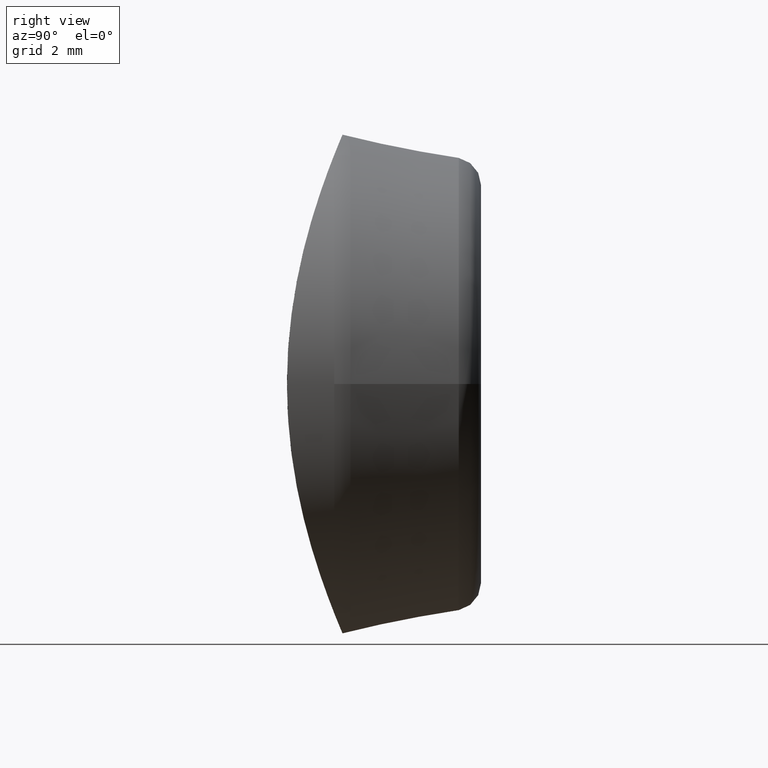
[diagram: clean part render]
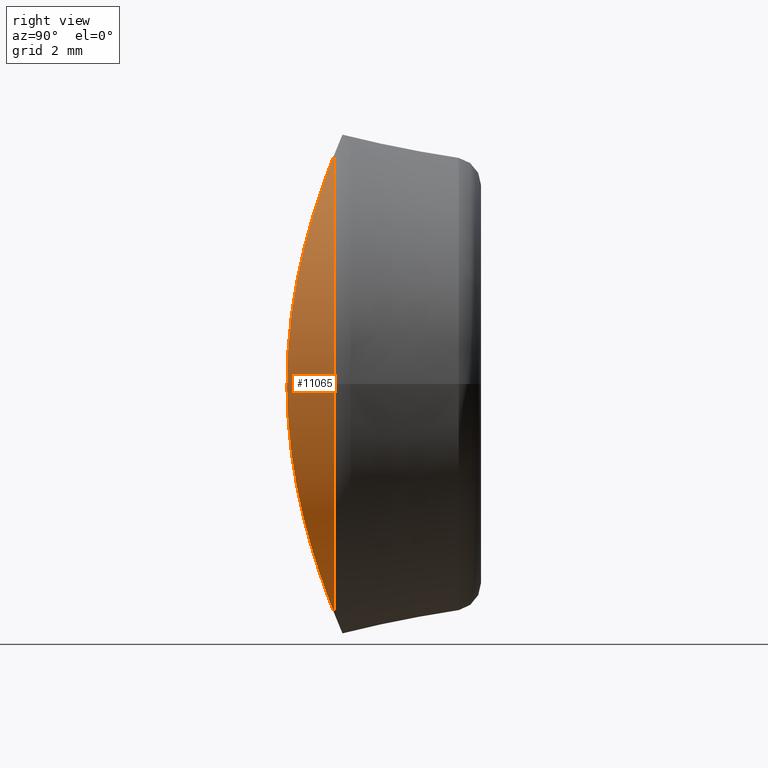
[diagram: same view with one face highlighted and labeled with its STEP entity id]
A machine part, right view. The second image highlights one B-rep face of the part: STEP entity #11065.
In plain terms, the highlighted cylindrical surface (partial cylindrical patch) has radius 9 mm, axis along (0, 1, 0).
Its self-contained STEP definition (entity closure, byte-faithful):
#3 = CARTESIAN_POINT ( 'NONE',  ( 8.325286420081219774, -1.702034945779434150, 3.446954527647875022 ) ) ;
#43 = CARTESIAN_POINT ( 'NONE',  ( 7.254618379325947330, -1.278246409192320687, -5.343986036388352012 ) ) ;
#77 = CARTESIAN_POINT ( 'NONE',  ( 6.408348769267516509, -0.9894555068876267345, 6.334097105854316290 ) ) ;
#119 = CARTESIAN_POINT ( 'NONE',  ( 8.737649480167293703, -1.883869969110991471, -2.201068361710543542 ) ) ;
#170 = CARTESIAN_POINT ( 'NONE',  ( 3.738979152164578323, -0.3313106756515576956, -8.189536316924305837 ) ) ;
#303 = EDGE_CURVE ( 'NONE', #12323, #11555, #5828, .T. ) ;
#765 = VERTEX_POINT ( 'NONE', #11943 ) ;
#991 = CARTESIAN_POINT ( 'NONE',  ( 8.674852194879518308, -1.855961087635569884, 2.407347494578982783 ) ) ;
#1130 = CARTESIAN_POINT ( 'NONE',  ( 8.967780133845078439, -1.990000845151914666, 0.8809174741159992994 ) ) ;
#1993 = CARTESIAN_POINT ( 'NONE',  ( 5.089912997554004725, -0.6083890780568557144, 7.473153656820967328 ) ) ;
#2038 = CARTESIAN_POINT ( 'NONE',  ( 0.000000000000000000, -10.00000000000000000, 0.000000000000000000 ) ) ;
#2080 = CARTESIAN_POINT ( 'NONE',  ( 7.252124631889408590, -1.277327088336913885, 5.347474220808958734 ) ) ;
#2119 = CARTESIAN_POINT ( 'NONE',  ( 8.482914956562572328, -1.770646896408823556, 3.038697762261656887 ) ) ;
#2176 = CARTESIAN_POINT ( 'NONE',  ( 3.939515432733915024, -0.3682983042103756266, -8.094966016909065587 ) ) ;
#2325 = EDGE_LOOP ( 'NONE', ( #3876, #5843, #3874 ) ) ;
#2619 = B_SPLINE_CURVE_WITH_KNOTS ( 'NONE', 3,
 ( #5067, #170, #2176, #3040, #12087, #10926, #9116, #9079, #5963, #6061, #43, #6967, #6917, #9910, #10043, #4125, #4950, #119, #11000, #10005, #8984, #4041, #11959, #5931, #1130, #8019, #12052, #4085, #991, #2119, #3, #6005, #7938, #2080, #3141, #77, #10088, #1993, #5120, #3009 ),
 .UNSPECIFIED., .F., .F.,
 ( 4, 2, 2, 2, 2, 2, 2, 2, 2, 2, 2, 2, 2, 2, 2, 2, 2, 2, 2, 4 ),
 ( 0.03211005986015320890, 0.03277249571516616111, 0.03343493157017912026, 0.03475980328020503163, 0.03608467499023093605, 0.03740954670025684742, 0.03807198255526979963, 0.03873441841028275878, 0.04005929012030866321, 0.04138416183033458151, 0.04204659768534753372, 0.04270903354036048594, 0.04403390525038640424, 0.04469634110539935645, 0.04535877696041230867, 0.04668364867043822003, 0.04800852038046413139, 0.04933339209049004970, 0.05065826380051596106, 0.05330800722056778379 ),
 .UNSPECIFIED. ) ;
#3009 = CARTESIAN_POINT ( 'NONE',  ( 3.536529139191802784, -0.2970585407783515874, 8.276047465284818827 ) ) ;
#3040 = CARTESIAN_POINT ( 'NONE',  ( 4.329756352961174670, -0.4458970969327287759, -7.893127807381156380 ) ) ;
#3141 = CARTESIAN_POINT ( 'NONE',  ( 6.987160647285993953, -1.182192209293612795, 5.689227204461292153 ) ) ;
#3874 = ORIENTED_EDGE ( 'NONE', *, *, #11933, .T. ) ;
#3876 = ORIENTED_EDGE ( 'NONE', *, *, #5155, .F. ) ;
#4041 = CARTESIAN_POINT ( 'NONE',  ( 8.991786829785466395, -2.001351629390572207, -0.4440792921767917623 ) ) ;
#4068 = FACE_OUTER_BOUND ( 'NONE', #2325, .T. ) ;
#4085 = CARTESIAN_POINT ( 'NONE',  ( 8.731381318865723884, -1.881463315577486917, 2.193724469505609065 ) ) ;
#4125 = CARTESIAN_POINT ( 'NONE',  ( 8.325999701593623570, -1.702335576957298979, -3.445346410578369767 ) ) ;
#4199 = DIRECTION ( 'NONE',  ( -2.630675051077222500E-17, -1.000000000000000000, 0.000000000000000000 ) ) ;
#4232 = CARTESIAN_POINT ( 'NONE',  ( 3.536529139191828541, -0.2970585407783417065, -8.276047465284845472 ) ) ;
#4714 = AXIS2_PLACEMENT_3D ( 'NONE', #7315, #4199, #7220 ) ;
#4950 = CARTESIAN_POINT ( 'NONE',  ( 8.483106834613938219, -1.770736085970567197, -3.037781888766408755 ) ) ;
#5067 = CARTESIAN_POINT ( 'NONE',  ( 3.536529139191828541, -0.2970585407783417065, -8.276047465284845472 ) ) ;
#5120 = CARTESIAN_POINT ( 'NONE',  ( 4.351107768067637771, -0.4348755586751987257, 7.927960885396752033 ) ) ;
#5155 = EDGE_CURVE ( 'NONE', #12323, #765, #2619, .T. ) ;
#5828 = CIRCLE ( 'NONE', #10973, 9.000000000000000000 ) ;
#5843 = ORIENTED_EDGE ( 'NONE', *, *, #303, .T. ) ;
#5931 = CARTESIAN_POINT ( 'NONE',  ( 9.000083227517286844, -2.005248063435561612, 0.4403249025801492800 ) ) ;
#5963 = CARTESIAN_POINT ( 'NONE',  ( 6.412175348067497893, -0.9906742402522878965, -6.330208572602527894 ) ) ;
#6005 = CARTESIAN_POINT ( 'NONE',  ( 7.951184012021561109, -1.546509011400343692, 4.239170001195247117 ) ) ;
#6061 = CARTESIAN_POINT ( 'NONE',  ( 6.990324177344665380, -1.183301764436832881, -5.685323312059368028 ) ) ;
#6838 = CYLINDRICAL_SURFACE ( 'NONE', #7301, 9.000000000000000000 ) ;
#6843 = DIRECTION ( 'NONE',  ( 0.000000000000000000, 1.000000000000000000, 0.000000000000000000 ) ) ;
#6917 = CARTESIAN_POINT ( 'NONE',  ( 7.728219629093209697, -1.458469793322479946, -4.617619331277857953 ) ) ;
#6967 = CARTESIAN_POINT ( 'NONE',  ( 7.614420111628360743, -1.414221146129786444, -4.802866332756035916 ) ) ;
#7220 = DIRECTION ( 'NONE',  ( 1.000000000000000000, -2.409338161078898811E-17, 0.000000000000000000 ) ) ;
#7301 = AXIS2_PLACEMENT_3D ( 'NONE', #2038, #6843, #12001 ) ;
#7315 = CARTESIAN_POINT ( 'NONE',  ( 0.000000000000000000, -0.2970585407783520315, 0.000000000000000000 ) ) ;
#7938 = CARTESIAN_POINT ( 'NONE',  ( 7.733527587557999183, -1.459210788976784690, 4.623996460979709511 ) ) ;
#8019 = CARTESIAN_POINT ( 'NONE',  ( 8.870104751981269686, -1.944805150208373856, 1.539647920849620988 ) ) ;
#8984 = CARTESIAN_POINT ( 'NONE',  ( 8.958889126677330950, -1.985978160038693430, -0.8875485485010388143 ) ) ;
#9079 = CARTESIAN_POINT ( 'NONE',  ( 6.095834884366065687, -0.8923402494448449129, -6.635474263192382871 ) ) ;
#9116 = CARTESIAN_POINT ( 'NONE',  ( 5.428409121140354898, -0.7038388497920831099, -7.191738040867655002 ) ) ;
#9910 = CARTESIAN_POINT ( 'NONE',  ( 7.943289982050647957, -1.544020304301380486, -4.236971935845981641 ) ) ;
#9957 = CIRCLE ( 'NONE', #4714, 9.000000000000000000 ) ;
#9979 = DIRECTION ( 'NONE',  ( -2.630675051077222500E-17, -1.000000000000000000, 0.000000000000000000 ) ) ;
#10005 = CARTESIAN_POINT ( 'NONE',  ( 8.933974157075173395, -1.974355028653953958, -1.110749521118368444 ) ) ;
#10043 = CARTESIAN_POINT ( 'NONE',  ( 8.044899925377478667, -1.585467570273514815, -4.040761799539419385 ) ) ;
#10088 = CARTESIAN_POINT ( 'NONE',  ( 6.091802589955552349, -0.8911262036554544741, 6.639183020544945357 ) ) ;
#10311 = CARTESIAN_POINT ( 'NONE',  ( 9.000000000000000000, -0.2970585407783521981, 0.000000000000000000 ) ) ;
#10926 = CARTESIAN_POINT ( 'NONE',  ( 5.076342617977857685, -0.6132212118312228011, -7.444466892397429092 ) ) ;
#10973 = AXIS2_PLACEMENT_3D ( 'NONE', #11110, #9979, #11067 ) ;
#11000 = CARTESIAN_POINT ( 'NONE',  ( 8.835095934053603273, -1.928613048091446958, -1.771924035582861379 ) ) ;
#11065 = ADVANCED_FACE ( 'NONE', ( #4068 ), #6838, .T. ) ;
#11067 = DIRECTION ( 'NONE',  ( 1.000000000000000000, -2.409338161078898811E-17, 0.000000000000000000 ) ) ;
#11110 = CARTESIAN_POINT ( 'NONE',  ( 0.000000000000000000, -0.2970585407783520315, 0.000000000000000000 ) ) ;
#11555 = VERTEX_POINT ( 'NONE', #10311 ) ;
#11933 = EDGE_CURVE ( 'NONE', #11555, #765, #9957, .T. ) ;
#11943 = CARTESIAN_POINT ( 'NONE',  ( 3.536529139191802784, -0.2970585407783515874, 8.276047465284818827 ) ) ;
#11959 = CARTESIAN_POINT ( 'NONE',  ( 8.999958146016384219, -2.005189415571877021, -0.2227092285266176475 ) ) ;
#12001 = DIRECTION ( 'NONE',  ( 0.000000000000000000, 0.000000000000000000, 1.000000000000000000 ) ) ;
#12052 = CARTESIAN_POINT ( 'NONE',  ( 8.829063795841202378, -1.925910868428000189, 1.759852059836612526 ) ) ;
#12087 = CARTESIAN_POINT ( 'NONE',  ( 4.519953649482768121, -0.4865696269654328776, -7.785714766693057953 ) ) ;
#12323 = VERTEX_POINT ( 'NONE', #4232 ) ;